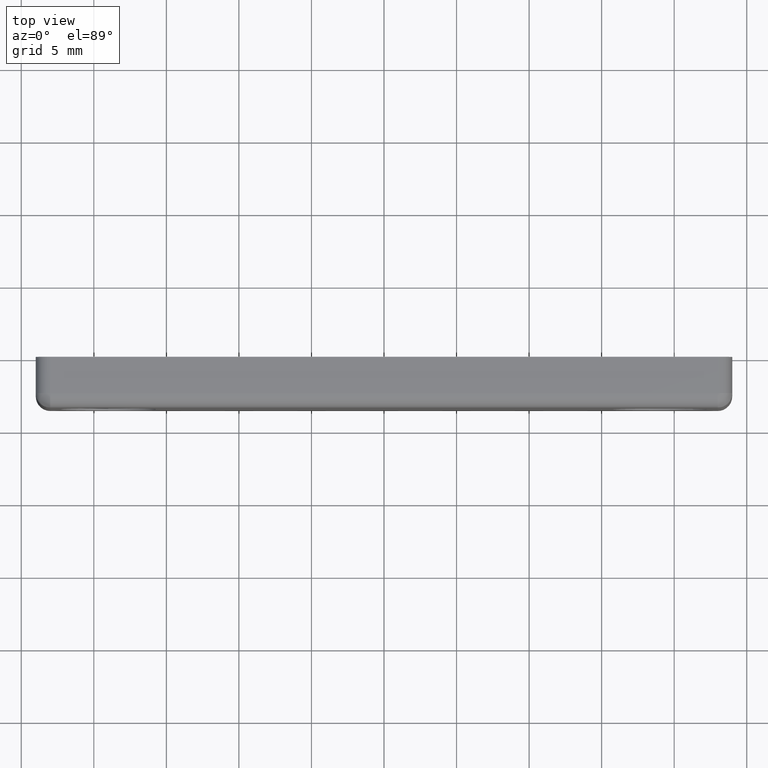
[diagram: clean part render]
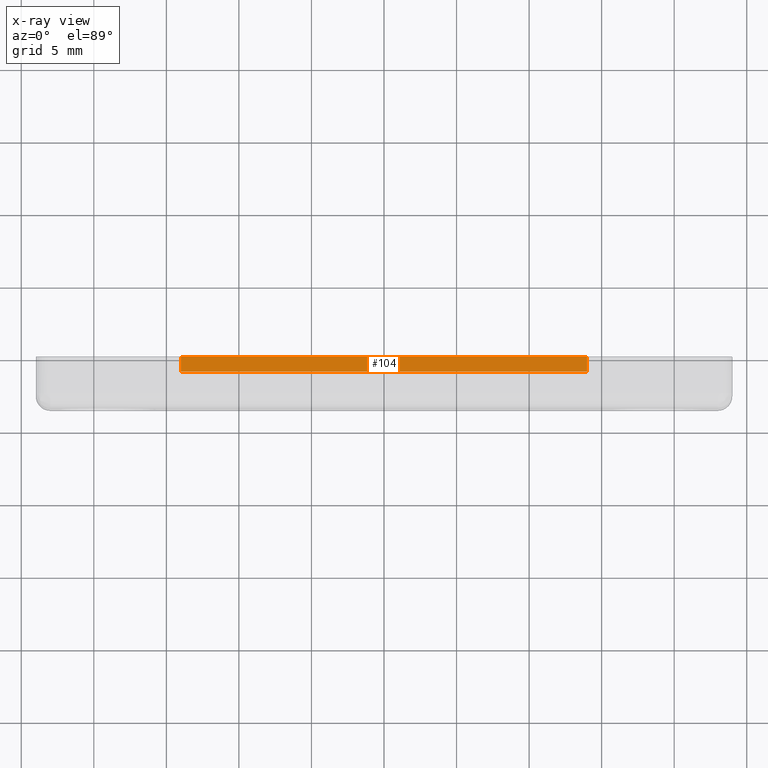
[diagram: x-ray — body ghosted, one internal face saturated and labeled with its STEP entity id]
A machine part, top view, then the same camera in x-ray: the body is ghosted and one INTERNAL B-rep face — a face not visible from any outside direction — is saturated and labeled: STEP entity #104.
In plain terms, the highlighted planar face has unit normal (0, 0, -1).
Its self-contained STEP definition (entity closure, byte-faithful):
#104=ADVANCED_FACE('',(#443),#442,.T.);
#442=PLANE('',#1081);
#443=FACE_OUTER_BOUND('',#1082,.T.);
#1078=CARTESIAN_POINT('',(1.68000000000E+01,-1.10000000000E+00,6.50000000000E+00));
#1079=DIRECTION('',(0.00000000000E+00,0.00000000000E+00,-1.00000000000E+00));
#1080=DIRECTION('',(-1.00000000000E+00,0.00000000000E+00,0.00000000000E+00));
#1081=AXIS2_PLACEMENT_3D('',#1078,#1079,#1080);
#1082=EDGE_LOOP('',(#1559,#1560,#1561,#1562));
#1559=ORIENTED_EDGE('',*,*,#1944,.F.);
#1560=ORIENTED_EDGE('',*,*,#1943,.F.);
#1561=ORIENTED_EDGE('',*,*,#1945,.T.);
#1562=ORIENTED_EDGE('',*,*,#1946,.T.);
#1943=EDGE_CURVE('',#2792,#2778,#2799,.T.);
#1944=EDGE_CURVE('',#2778,#2805,#2806,.T.);
#1945=EDGE_CURVE('',#2792,#2812,#2813,.T.);
#1946=EDGE_CURVE('',#2812,#2805,#2819,.T.);
#2778=VERTEX_POINT('',#4131);
#2792=VERTEX_POINT('',#4139);
#2799=LINE('',#4143,#4144);
#2805=VERTEX_POINT('',#4146);
#2806=LINE('',#4147,#4148);
#2812=VERTEX_POINT('',#4150);
#2813=LINE('',#4151,#4152);
#2819=LINE('',#4154,#4155);
#4131=CARTESIAN_POINT('',(1.40000000000E+01,0.00000000000E+00,6.50000000000E+00));
#4139=CARTESIAN_POINT('',(1.40000000000E+01,-1.00000000000E+00,6.50000000000E+00));
#4143=CARTESIAN_POINT('',(1.40000000000E+01,-1.00000000000E+00,6.50000000000E+00));
#4144=VECTOR('',#4145,1.00000000000E+00);
#4145=DIRECTION('',(0.00000000000E+00,1.00000000000E+00,0.00000000000E+00));
#4146=CARTESIAN_POINT('',(-1.40000000000E+01,0.00000000000E+00,6.50000000000E+00));
#4147=CARTESIAN_POINT('',(1.40000000000E+01,0.00000000000E+00,6.50000000000E+00));
#4148=VECTOR('',#4149,2.80000000000E+01);
#4149=DIRECTION('',(-1.00000000000E+00,0.00000000000E+00,0.00000000000E+00));
#4150=CARTESIAN_POINT('',(-1.40000000000E+01,-1.00000000000E+00,6.50000000000E+00));
#4151=CARTESIAN_POINT('',(1.40000000000E+01,-1.00000000000E+00,6.50000000000E+00));
#4152=VECTOR('',#4153,2.80000000000E+01);
#4153=DIRECTION('',(-1.00000000000E+00,0.00000000000E+00,0.00000000000E+00));
#4154=CARTESIAN_POINT('',(-1.40000000000E+01,-1.00000000000E+00,6.50000000000E+00));
#4155=VECTOR('',#4156,1.00000000000E+00);
#4156=DIRECTION('',(0.00000000000E+00,1.00000000000E+00,0.00000000000E+00));